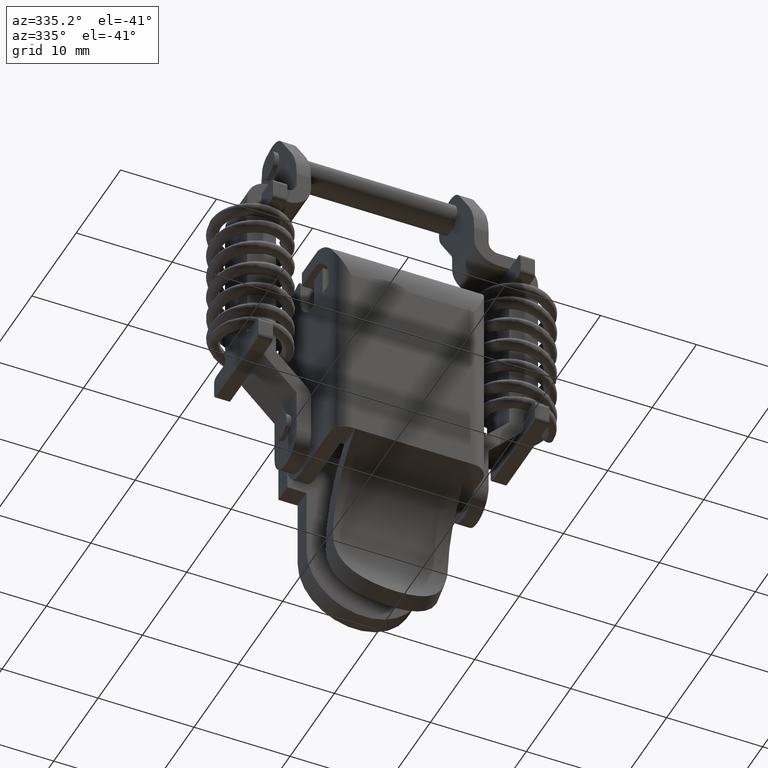
[diagram: clean part render]
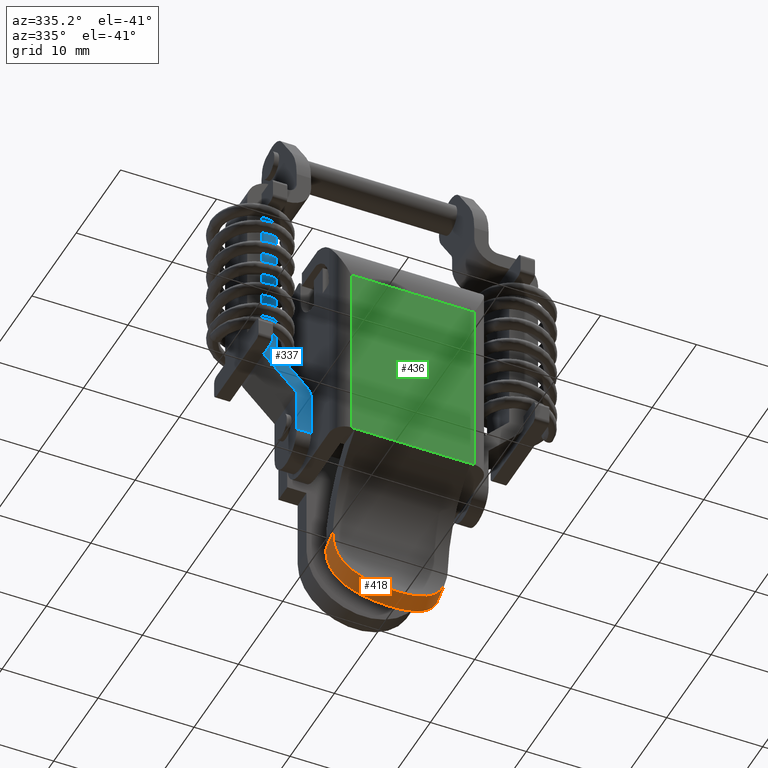
[diagram: same view with three faces highlighted in distinct colors, each labeled with its STEP entity id]
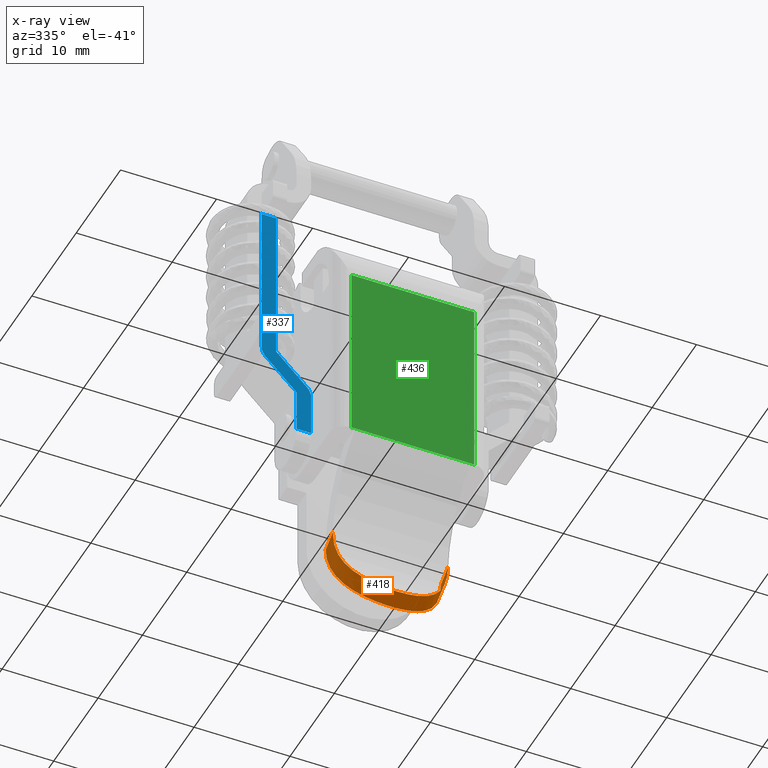
[diagram: x-ray of the same camera — body ghosted, the three highlighted faces saturated]
A machine part, auxiliary view with three faces highlighted in distinct colors.
The next image is the same camera in x-ray (body ghosted, the three faces saturated) — at least one of them is partly hidden behind the body in this view.
Their STEP definitions:

[orange] entity #418 — the highlighted cylindrical surface (partial cylindrical patch) has radius 6 mm, axis along (0, -0.867, 0.4984).
#418=ADVANCED_FACE('',(#2076),#2075,.T.);
#2075=CYLINDRICAL_SURFACE('',#3504,6.00000000000E+00);
#2076=FACE_OUTER_BOUND('',#3505,.T.);
#3501=CARTESIAN_POINT('',(0.00000000000E+00,4.88124624235E-01,-3.55992736408E+01));
#3502=DIRECTION('',(-0.00000000000E+00,-8.66966586350E-01,4.98366269075E-01));
#3503=DIRECTION('',(1.22464679915E-16,4.98366269075E-01,8.66966586350E-01));
#3504=AXIS2_PLACEMENT_3D('',#3501,#3502,#3503);
#3505=EDGE_LOOP('',(#6771,#6772,#6773,#6774));
#6771=ORIENTED_EDGE('',*,*,#7516,.F.);
#6772=ORIENTED_EDGE('',*,*,#7433,.F.);
#6773=ORIENTED_EDGE('',*,*,#7517,.F.);
#6774=ORIENTED_EDGE('',*,*,#7428,.F.);
#7428=EDGE_CURVE('',#10062,#10063,#10064,.T.);
#7433=EDGE_CURVE('',#10091,#10098,#10099,.T.);
#7516=EDGE_CURVE('',#10098,#10062,#10661,.T.);
#7517=EDGE_CURVE('',#10063,#10091,#10667,.T.);
#10062=VERTEX_POINT('',#12882);
#10063=VERTEX_POINT('',#12883);
#10064=(BOUNDED_CURVE() B_SPLINE_CURVE(3,(#12884,#12885,#12886,#12887,#12888,#12889,#12890,#12891,#12892,#12893,#12894,#12895,#12896,#12897,#12898,#12899,#12900,#12901,#12902,#12903,#12904,#12905,#12906,#12907,#12908,#12909,#12910,#12911,#12912,#12913,#12914,#12915,#12916,#12917,#12918,#12919,#12920,#12921,#12922,#12923),.UNSPECIFIED.,.F.,.F.) B_SPLINE_CURVE_WITH_KNOTS((4,2,2,2,2,2,2,2,2,2,2,2,2,2,2,2,2,2,2,4),(0.00000000000E+00,1.21913613911E-03,1.82870420867E-03,2.43827227822E-03,3.65740841734E-03,4.87654455645E-03,6.09568069556E-03,7.31481683467E-03,8.53395297378E-03,9.75308911289E-03,1.09722252520E-02,1.15817933216E-02,1.21913613911E-02,1.34104975302E-02,1.40200655998E-02,1.46296336693E-02,1.58487698085E-02,1.70679059476E-02,1.82870420867E-02,1.95061782258E-02),.UNSPECIFIED.) CURVE() GEOMETRIC_REPRESENTATION_ITEM() RATIONAL_B_SPLINE_CURVE((1.00000000000E+00,1.00000000000E+00,1.00000000000E+00,1.00000000000E+00,1.00000000000E+00,1.00000000000E+00,1.00000000000E+00,1.00000000000E+00,1.00000000000E+00,1.00000000000E+00,1.00000000000E+00,1.00000000000E+00,1.00000000000E+00,1.00000000000E+00,1.00000000000E+00,1.00000000000E+00,1.00000000000E+00,1.00000000000E+00,1.00000000000E+00,1.00000000000E+00,1.00000000000E+00,1.00000000000E+00,1.00000000000E+00,1.00000000000E+00,1.00000000000E+00,1.00000000000E+00,1.00000000000E+00,1.00000000000E+00,1.00000000000E+00,1.00000000000E+00,1.00000000000E+00,1.00000000000E+00,1.00000000000E+00,1.00000000000E+00,1.00000000000E+00,1.00000000000E+00,1.00000000000E+00,1.00000000000E+00,1.00000000000E+00,1.00000000000E+00)) REPRESENTATION_ITEM('') );
#10091=VERTEX_POINT('',#12938);
#10098=VERTEX_POINT('',#12943);
#10099=(BOUNDED_CURVE() B_SPLINE_CURVE(3,(#12944,#12945,#12946,#12947,#12948,#12949,#12950,#12951,#12952,#12953,#12954,#12955,#12956,#12957,#12958,#12959,#12960,#12961,#12962,#12963,#12964,#12965,#12966,#12967,#12968,#12969,#12970,#12971,#12972,#12973,#12974,#12975,#12976,#12977,#12978,#12979,#12980,#12981,#12982,#12983),.UNSPECIFIED.,.F.,.F.) B_SPLINE_CURVE_WITH_KNOTS((4,2,2,2,2,2,2,2,2,2,2,2,2,2,2,2,2,2,2,4),(-9.65610325047E-03,-8.44914628560E-03,-7.84566780317E-03,-7.24218932074E-03,-6.03523235587E-03,-4.82827539101E-03,-3.62131842615E-03,-2.41436146128E-03,-1.20740449642E-03,-4.47531552003E-07,1.20650943331E-03,1.80998791574E-03,2.41346639818E-03,3.62042336304E-03,4.22390184547E-03,4.82738032791E-03,6.03433729277E-03,7.24129425763E-03,8.44825122250E-03,9.65520818736E-03),.UNSPECIFIED.) CURVE() GEOMETRIC_REPRESENTATION_ITEM() RATIONAL_B_SPLINE_CURVE((1.00000000000E+00,1.00000000000E+00,1.00000000000E+00,1.00000000000E+00,1.00000000000E+00,1.00000000000E+00,1.00000000000E+00,1.00000000000E+00,1.00000000000E+00,1.00000000000E+00,1.00000000000E+00,1.00000000000E+00,1.00000000000E+00,1.00000000000E+00,1.00000000000E+00,1.00000000000E+00,1.00000000000E+00,1.00000000000E+00,1.00000000000E+00,1.00000000000E+00,1.00000000000E+00,1.00000000000E+00,1.00000000000E+00,1.00000000000E+00,1.00000000000E+00,1.00000000000E+00,1.00000000000E+00,1.00000000000E+00,1.00000000000E+00,1.00000000000E+00,1.00000000000E+00,1.00000000000E+00,1.00000000000E+00,1.00000000000E+00,1.00000000000E+00,1.00000000000E+00,1.00000000000E+00,1.00000000000E+00,1.00000000000E+00,1.00000000000E+00)) REPRESENTATION_ITEM('') );
#10661=LINE('',#13344,#13345);
#10667=LINE('',#13347,#13348);
#12882=CARTESIAN_POINT('',(-6.00000000000E+00,-2.63562471669E+00,-3.38036204645E+01));
#12883=CARTESIAN_POINT('',(6.00000000000E+00,-2.63562471669E+00,-3.38036204645E+01));
#12884=CARTESIAN_POINT('',(-6.00000000000E+00,-2.63562471669E+00,-3.38036204645E+01));
#12885=CARTESIAN_POINT('',(-6.00000000000E+00,-2.60813089258E+00,-3.42142138750E+01));
#12886=CARTESIAN_POINT('',(-5.97090903007E+00,-2.60210208170E+00,-3.46205091838E+01));
#12887=CARTESIAN_POINT('',(-5.87660509336E+00,-2.62301472533E+00,-3.52226040943E+01));
#12888=CARTESIAN_POINT('',(-5.83669091746E+00,-2.63498579734E+00,-3.54220728971E+01));
#12889=CARTESIAN_POINT('',(-5.73814316851E+00,-2.66861693265E+00,-3.58183213082E+01));
#12890=CARTESIAN_POINT('',(-5.67924508614E+00,-2.69039080929E+00,-3.60154433670E+01));
#12891=CARTESIAN_POINT('',(-5.47686118706E+00,-2.76748511198E+00,-3.65881308967E+01));
#12892=CARTESIAN_POINT('',(-5.30689927754E+00,-2.83487400160E+00,-3.69499460341E+01));
#12893=CARTESIAN_POINT('',(-4.89133712658E+00,-2.99168694766E+00,-3.76327523293E+01));
#12894=CARTESIAN_POINT('',(-4.64345124882E+00,-3.08175005735E+00,-3.79544558611E+01));
#12895=CARTESIAN_POINT('',(-4.09251288212E+00,-3.26307021561E+00,-3.85250210517E+01));
#12896=CARTESIAN_POINT('',(-3.78644412211E+00,-3.35552586229E+00,-3.87791400257E+01));
#12897=CARTESIAN_POINT('',(-3.11518137778E+00,-3.53027551886E+00,-3.92230344667E+01));
#12898=CARTESIAN_POINT('',(-2.76029995239E+00,-3.60985135974E+00,-3.94063309206E+01));
#12899=CARTESIAN_POINT('',(-2.01343391043E+00,-3.74403800483E+00,-3.97027262426E+01));
#12900=CARTESIAN_POINT('',(-1.61758208739E+00,-3.79881294256E+00,-3.98160033105E+01));
#12901=CARTESIAN_POINT('',(-8.18519976928E-01,-3.87193484574E+00,-3.99650570175E+01));
#12902=CARTESIAN_POINT('',(-4.12777232474E-01,-3.89106638958E+00,-4.00025742052E+01));
#12903=CARTESIAN_POINT('',(4.11483882626E-01,-3.89110640739E+00,-4.00026536715E+01));
#12904=CARTESIAN_POINT('',(8.16508715072E-01,-3.87201677574E+00,-3.99652129868E+01));
#12905=CARTESIAN_POINT('',(1.41372991229E+00,-3.81751779575E+00,-3.98541372490E+01));
#12906=CARTESIAN_POINT('',(1.61107379198E+00,-3.79503703000E+00,-3.98078690157E+01));
#12907=CARTESIAN_POINT('',(2.00220029929E+00,-3.74190598111E+00,-3.96959574970E+01));
#12908=CARTESIAN_POINT('',(2.19558732515E+00,-3.71125178429E+00,-3.96302770842E+01));
#12909=CARTESIAN_POINT('',(2.75697739111E+00,-3.61056514550E+00,-3.94079665855E+01));
#12910=CARTESIAN_POINT('',(3.11095073319E+00,-3.53121380913E+00,-3.92251718821E+01));
#12911=CARTESIAN_POINT('',(3.61116419284E+00,-3.40123565709E+00,-3.88953703311E+01));
#12912=CARTESIAN_POINT('',(3.77359103459E+00,-3.35581469499E+00,-3.87752914125E+01));
#12913=CARTESIAN_POINT('',(4.08099909437E+00,-3.26471192538E+00,-3.85206722670E+01));
#12914=CARTESIAN_POINT('',(4.22656626250E+00,-3.21891334202E+00,-3.83859011680E+01));
#12915=CARTESIAN_POINT('',(4.63951743552E+00,-3.08311989389E+00,-3.79590999073E+01));
#12916=CARTESIAN_POINT('',(4.88459840742E+00,-2.99418244734E+00,-3.76426578582E+01));
#12917=CARTESIAN_POINT('',(5.30504788650E+00,-2.83561903481E+00,-3.69541312109E+01));
#12918=CARTESIAN_POINT('',(5.47558940002E+00,-2.76798567681E+00,-3.65909759000E+01));
#12919=CARTESIAN_POINT('',(5.74544033235E+00,-2.66515903672E+00,-3.58288768090E+01));
#12920=CARTESIAN_POINT('',(5.84447520462E+00,-2.63018694503E+00,-3.54269010173E+01));
#12921=CARTESIAN_POINT('',(5.97089421066E+00,-2.60205846965E+00,-3.46214393341E+01));
#12922=CARTESIAN_POINT('',(6.00000000000E+00,-2.60811883615E+00,-3.42143939260E+01));
#12923=CARTESIAN_POINT('',(6.00000000000E+00,-2.63562471669E+00,-3.38036204645E+01));
#12938=CARTESIAN_POINT('',(6.00000000000E+00,-1.00946280514E+00,-3.47384018707E+01));
#12943=CARTESIAN_POINT('',(-6.00000000000E+00,-1.00946280514E+00,-3.47384018707E+01));
#12944=CARTESIAN_POINT('',(6.00000000000E+00,-1.00946280514E+00,-3.47384018707E+01));
#12945=CARTESIAN_POINT('',(6.00000000000E+00,-1.01344991931E+00,-3.51459569950E+01));
#12946=CARTESIAN_POINT('',(5.96865992076E+00,-1.03567453528E+00,-3.55474828723E+01));
#12947=CARTESIAN_POINT('',(5.86961814465E+00,-1.09423809759E+00,-3.61401901972E+01));
#12948=CARTESIAN_POINT('',(5.82789219968E+00,-1.11796864046E+00,-3.63361562413E+01));
#12949=CARTESIAN_POINT('',(5.72556343788E+00,-1.17352635480E+00,-3.67247017180E+01));
#12950=CARTESIAN_POINT('',(5.66467673433E+00,-1.20548282447E+00,-3.69176798710E+01));
#12951=CARTESIAN_POINT('',(5.45651720408E+00,-1.31016198456E+00,-3.74776664100E+01));
#12952=CARTESIAN_POINT('',(5.28297319959E+00,-1.39225295077E+00,-3.78304218724E+01));
#12953=CARTESIAN_POINT('',(4.86243481974E+00,-1.57230478673E+00,-3.84948247475E+01));
#12954=CARTESIAN_POINT('',(4.61310784370E+00,-1.67090116917E+00,-3.88073443833E+01));
#12955=CARTESIAN_POINT('',(4.06147097094E+00,-1.86431522345E+00,-3.93618303973E+01));
#12956=CARTESIAN_POINT('',(3.75702769081E+00,-1.96023697737E+00,-3.96081915010E+01));
#12957=CARTESIAN_POINT('',(3.08858335372E+00,-2.13987119496E+00,-4.00404577720E+01));
#12958=CARTESIAN_POINT('',(2.73571360508E+00,-2.22049518172E+00,-4.02191814815E+01));
#12959=CARTESIAN_POINT('',(1.99549347444E+00,-2.35543437759E+00,-4.05079121344E+01));
#12960=CARTESIAN_POINT('',(1.60372069418E+00,-2.41008172671E+00,-4.06184811378E+01));
#12961=CARTESIAN_POINT('',(8.10739310400E-01,-2.48309439951E+00,-4.07643874061E+01));
#12962=CARTESIAN_POINT('',(4.08524689834E-01,-2.50205890108E+00,-4.08010456280E+01));
#12963=CARTESIAN_POINT('',(-4.07616825543E-01,-2.50208706369E+00,-4.08011006592E+01));
#12964=CARTESIAN_POINT('',(-8.08706493222E-01,-2.48315455585E+00,-4.07644961766E+01));
#12965=CARTESIAN_POINT('',(-1.40023265090E+00,-2.42888011266E+00,-4.06560528827E+01));
#12966=CARTESIAN_POINT('',(-1.59571224067E+00,-2.40646829274E+00,-4.06108975460E+01));
#12967=CARTESIAN_POINT('',(-1.98318589362E+00,-2.35336552011E+00,-4.05017745784E+01));
#12968=CARTESIAN_POINT('',(-2.17506346561E+00,-2.32262757768E+00,-4.04376860624E+01));
#12969=CARTESIAN_POINT('',(-2.73223908532E+00,-2.22126961705E+00,-4.02208955452E+01));
#12970=CARTESIAN_POINT('',(-3.08381993066E+00,-2.14094121761E+00,-4.00428011027E+01));
#12971=CARTESIAN_POINT('',(-3.58122123000E+00,-2.00758384837E+00,-3.97222374976E+01));
#12972=CARTESIAN_POINT('',(-3.74290265960E+00,-1.96068623144E+00,-3.96056115162E+01));
#12973=CARTESIAN_POINT('',(-4.04994752286E+00,-1.86552807998E+00,-3.93578662785E+01));
#12974=CARTESIAN_POINT('',(-4.19552599303E+00,-1.81726076140E+00,-3.92267952823E+01));
#12975=CARTESIAN_POINT('',(-4.60909752481E+00,-1.67240967005E+00,-3.88119387789E+01));
#12976=CARTESIAN_POINT('',(-4.85459744712E+00,-1.57553337455E+00,-3.85059404076E+01));
#12977=CARTESIAN_POINT('',(-5.28093119082E+00,-1.39325127158E+00,-3.78348854644E+01));
#12978=CARTESIAN_POINT('',(-5.45501716022E+00,-1.31087366179E+00,-3.74807785851E+01));
#12979=CARTESIAN_POINT('',(-5.73222545949E+00,-1.17155610868E+00,-3.67368738145E+01));
#12980=CARTESIAN_POINT('',(-5.83549636537E+00,-1.11439254278E+00,-3.63431586593E+01));
#12981=CARTESIAN_POINT('',(-5.96864569128E+00,-1.03570458397E+00,-3.55487881928E+01));
#12982=CARTESIAN_POINT('',(-6.00000000000E+00,-1.01345170163E+00,-3.51461391799E+01));
#12983=CARTESIAN_POINT('',(-6.00000000000E+00,-1.00946280514E+00,-3.47384018707E+01));
#13344=CARTESIAN_POINT('',(-6.00000000000E+00,-1.00946280514E+00,-3.47384018707E+01));
#13345=VECTOR('',#13346,1.87569156315E+00);
#13346=DIRECTION('',(0.00000000000E+00,-8.66966586350E-01,4.98366269075E-01));
#13347=CARTESIAN_POINT('',(6.00000000000E+00,-2.63562471669E+00,-3.38036204645E+01));
#13348=VECTOR('',#13349,1.87569156315E+00);
#13349=DIRECTION('',(0.00000000000E+00,8.66966586350E-01,-4.98366269075E-01));

[blue] entity #337 — the highlighted planar face has unit normal (0, -1, 0).
#337=ADVANCED_FACE('',(#1257),#1256,.T.);
#1256=PLANE('',#3090);
#1257=FACE_OUTER_BOUND('',#3091,.T.);
#3087=CARTESIAN_POINT('',(-3.66500000000E+00,-2.45367295083E+00,2.61599958664E+01));
#3088=DIRECTION('',(0.00000000000E+00,-9.99999999997E-01,2.48767310927E-06));
#3089=DIRECTION('',(0.00000000000E+00,-2.48767310927E-06,-9.99999999997E-01));
#3090=AXIS2_PLACEMENT_3D('',#3087,#3088,#3089);
#3091=EDGE_LOOP('',(#6330,#6331,#6332,#6333,#6334,#6335,#6336,#6337,#6338,#6339));
#6330=ORIENTED_EDGE('',*,*,#7284,.T.);
#6331=ORIENTED_EDGE('',*,*,#7281,.T.);
#6332=ORIENTED_EDGE('',*,*,#7276,.T.);
#6333=ORIENTED_EDGE('',*,*,#7239,.F.);
#6334=ORIENTED_EDGE('',*,*,#7272,.T.);
#6335=ORIENTED_EDGE('',*,*,#7269,.T.);
#6336=ORIENTED_EDGE('',*,*,#7266,.T.);
#6337=ORIENTED_EDGE('',*,*,#7264,.T.);
#6338=ORIENTED_EDGE('',*,*,#7288,.T.);
#6339=ORIENTED_EDGE('',*,*,#7245,.F.);
#7239=EDGE_CURVE('',#8801,#8786,#8808,.T.);
#7245=EDGE_CURVE('',#8842,#8849,#8850,.T.);
#7264=EDGE_CURVE('',#8977,#8970,#8978,.T.);
#7266=EDGE_CURVE('',#8990,#8977,#8991,.T.);
#7269=EDGE_CURVE('',#9010,#8990,#9011,.T.);
#7272=EDGE_CURVE('',#8801,#9010,#9030,.T.);
#7276=EDGE_CURVE('',#9056,#8786,#9057,.T.);
#7281=EDGE_CURVE('',#9090,#9056,#9091,.T.);
#7284=EDGE_CURVE('',#8842,#9090,#9110,.T.);
#7288=EDGE_CURVE('',#8970,#8849,#9136,.T.);
#8786=VERTEX_POINT('',#12140);
#8801=VERTEX_POINT('',#12150);
#8808=LINE('',#12155,#12156);
#8842=VERTEX_POINT('',#12174);
#8849=VERTEX_POINT('',#12178);
#8850=LINE('',#12179,#12180);
#8970=VERTEX_POINT('',#12251);
#8977=VERTEX_POINT('',#12255);
#8978=LINE('',#12256,#12257);
#8990=VERTEX_POINT('',#12262);
#8991=LINE('',#12263,#12264);
#9010=VERTEX_POINT('',#12273);
#9011=CIRCLE('',#12277,1.50000000000E+00);
#9030=LINE('',#12286,#12287);
#9056=VERTEX_POINT('',#12302);
#9057=LINE('',#12303,#12304);
#9090=VERTEX_POINT('',#12323);
#9091=LINE('',#12324,#12325);
#9110=CIRCLE('',#12337,1.50000000000E+00);
#9136=LINE('',#12352,#12353);
#12140=CARTESIAN_POINT('',(5.00000000000E-01,-2.45374300369E+00,-1.99999759099E+00));
#12150=CARTESIAN_POINT('',(2.00000000000E+00,-2.45374300369E+00,-1.99999759099E+00));
#12155=CARTESIAN_POINT('',(2.00000000000E+00,-2.45374300369E+00,-1.99999759099E+00));
#12156=VECTOR('',#12157,1.50000000000E+00);
#12157=DIRECTION('',(-1.00000000000E+00,0.00000000000E+00,0.00000000000E+00));
#12174=CARTESIAN_POINT('',(-3.15000000000E+00,-2.45372081671E+00,6.91876891475E+00));
#12178=CARTESIAN_POINT('',(-3.15000000000E+00,-2.45367931927E+00,2.35999964612E+01));
#12179=CARTESIAN_POINT('',(-3.15000000000E+00,-2.45372081671E+00,6.91876891475E+00));
#12180=VECTOR('',#12181,1.66812275465E+01);
#12181=DIRECTION('',(0.00000000000E+00,2.48767310927E-06,9.99999999997E-01));
#12251=CARTESIAN_POINT('',(-1.65000000000E+00,-2.45367931927E+00,2.35999964612E+01));
#12255=CARTESIAN_POINT('',(-1.65000000000E+00,-2.45372081262E+00,6.92041220611E+00));
#12256=CARTESIAN_POINT('',(-1.65000000000E+00,-2.45372081262E+00,6.92041220611E+00));
#12257=VECTOR('',#12258,1.66795842552E+01);
#12258=DIRECTION('',(0.00000000000E+00,2.48767310927E-06,9.99999999997E-01));
#12262=CARTESIAN_POINT('',(1.57716753486E+00,-2.45372909667E+00,3.59037351875E+00));
#12263=CARTESIAN_POINT('',(1.57716753486E+00,-2.45372909667E+00,3.59037351875E+00));
#12264=VECTOR('',#12265,4.63721553925E+00);
#12265=DIRECTION('',(-6.95927870410E-01,1.78642714044E-06,7.18111689909E-01));
#12273=CARTESIAN_POINT('',(2.00000000000E+00,-2.45373169353E+00,2.54648171313E+00));
#12274=CARTESIAN_POINT('',(5.00000000000E-01,-2.45373169353E+00,2.54648171313E+00));
#12275=DIRECTION('',(0.00000000000E+00,-9.99999999997E-01,2.48767310927E-06));
#12276=DIRECTION('',(-0.00000000000E+00,2.48767310927E-06,9.99999999997E-01));
#12277=AXIS2_PLACEMENT_3D('',#12274,#12275,#12276);
#12286=CARTESIAN_POINT('',(2.00000000000E+00,-2.45374300369E+00,-1.99999759099E+00));
#12287=VECTOR('',#12288,4.54647930414E+00);
#12288=DIRECTION('',(0.00000000000E+00,2.48767310930E-06,9.99999999997E-01));
#12302=CARTESIAN_POINT('',(5.00000000000E-01,-2.45373169353E+00,2.54648171313E+00));
#12303=CARTESIAN_POINT('',(5.00000000000E-01,-2.45373169353E+00,2.54648171313E+00));
#12304=VECTOR('',#12305,4.54647930414E+00);
#12305=DIRECTION('',(1.61412242350E-14,-2.48767310920E-06,-9.99999999997E-01));
#12323=CARTESIAN_POINT('',(-2.76710134672E+00,-2.45372330698E+00,5.91772716680E+00));
#12324=CARTESIAN_POINT('',(-2.76710134672E+00,-2.45372330698E+00,5.91772716680E+00));
#12325=VECTOR('',#12326,4.69459765248E+00);
#12326=DIRECTION('',(6.95927870410E-01,-1.78642714043E-06,-7.18111689909E-01));
#12334=CARTESIAN_POINT('',(-1.65000000000E+00,-2.45372081671E+00,6.91876891475E+00));
#12335=DIRECTION('',(0.00000000000E+00,-9.99999999997E-01,2.48767310927E-06));
#12336=DIRECTION('',(-0.00000000000E+00,2.48767310927E-06,9.99999999997E-01));
#12337=AXIS2_PLACEMENT_3D('',#12334,#12335,#12336);
#12352=CARTESIAN_POINT('',(-1.65000000000E+00,-2.45367931927E+00,2.35999964612E+01));
#12353=VECTOR('',#12354,1.50000000000E+00);
#12354=DIRECTION('',(-1.00000000000E+00,0.00000000000E+00,0.00000000000E+00));

[green] entity #436 — the highlighted planar face has unit normal (0, -1, 0).
#436=ADVANCED_FACE('',(#2257),#2256,.T.);
#2256=PLANE('',#3595);
#2257=FACE_OUTER_BOUND('',#3596,.T.);
#3592=CARTESIAN_POINT('',(-7.68000000000E+00,-7.69108641419E+00,-3.79000000000E+00));
#3593=DIRECTION('',(0.00000000000E+00,-1.00000000000E+00,0.00000000000E+00));
#3594=DIRECTION('',(0.00000000000E+00,0.00000000000E+00,-1.00000000000E+00));
#3595=AXIS2_PLACEMENT_3D('',#3592,#3593,#3594);
#3596=EDGE_LOOP('',(#6862,#6863,#6864,#6865,#6866,#6867));
#6862=ORIENTED_EDGE('',*,*,#7537,.F.);
#6863=ORIENTED_EDGE('',*,*,#7519,.T.);
#6864=ORIENTED_EDGE('',*,*,#7440,.T.);
#6865=ORIENTED_EDGE('',*,*,#7550,.T.);
#6866=ORIENTED_EDGE('',*,*,#7483,.T.);
#6867=ORIENTED_EDGE('',*,*,#7430,.F.);
#7430=EDGE_CURVE('',#10070,#10077,#10078,.T.);
#7440=EDGE_CURVE('',#10146,#10147,#10148,.T.);
#7483=EDGE_CURVE('',#10441,#10077,#10442,.T.);
#7519=EDGE_CURVE('',#10679,#10146,#10680,.T.);
#7537=EDGE_CURVE('',#10679,#10070,#10796,.T.);
#7550=EDGE_CURVE('',#10147,#10441,#10880,.T.);
#10070=VERTEX_POINT('',#12924);
#10077=VERTEX_POINT('',#12929);
#10078=LINE('',#12930,#12931);
#10146=VERTEX_POINT('',#13010);
#10147=VERTEX_POINT('',#13011);
#10148=LINE('',#13012,#13013);
#10441=VERTEX_POINT('',#13212);
#10442=LINE('',#13213,#13214);
#10679=VERTEX_POINT('',#13353);
#10680=LINE('',#13354,#13355);
#10796=LINE('',#13421,#13422);
#10880=LINE('',#13470,#13471);
#12924=CARTESIAN_POINT('',(6.00000000000E+00,-7.69108641419E+00,-2.48000000000E+01));
#12929=CARTESIAN_POINT('',(-6.00000000000E+00,-7.69108641419E+00,-2.48000000000E+01));
#12930=CARTESIAN_POINT('',(6.00000000000E+00,-7.69108641419E+00,-2.48000000000E+01));
#12931=VECTOR('',#12932,1.20000000000E+01);
#12932=DIRECTION('',(-1.00000000000E+00,0.00000000000E+00,0.00000000000E+00));
#13010=CARTESIAN_POINT('',(6.40000000000E+00,-7.69108641419E+00,-5.70000000000E+00));
#13011=CARTESIAN_POINT('',(-6.40000000000E+00,-7.69108641419E+00,-5.70000000000E+00));
#13012=CARTESIAN_POINT('',(6.40000000000E+00,-7.69108641419E+00,-5.70000000000E+00));
#13013=VECTOR('',#13014,1.28000000000E+01);
#13014=DIRECTION('',(-1.00000000000E+00,0.00000000000E+00,0.00000000000E+00));
#13212=CARTESIAN_POINT('',(-6.40000000000E+00,-7.69108641419E+00,-2.48000000000E+01));
#13213=CARTESIAN_POINT('',(-6.40000000000E+00,-7.69108641419E+00,-2.48000000000E+01));
#13214=VECTOR('',#13215,4.00000000000E-01);
#13215=DIRECTION('',(1.00000000000E+00,0.00000000000E+00,0.00000000000E+00));
#13353=CARTESIAN_POINT('',(6.40000000000E+00,-7.69108641419E+00,-2.48000000000E+01));
#13354=CARTESIAN_POINT('',(6.40000000000E+00,-7.69108641419E+00,-2.48000000000E+01));
#13355=VECTOR('',#13356,1.91000000000E+01);
#13356=DIRECTION('',(0.00000000000E+00,0.00000000000E+00,1.00000000000E+00));
#13421=CARTESIAN_POINT('',(6.40000000000E+00,-7.69108641419E+00,-2.48000000000E+01));
#13422=VECTOR('',#13423,4.00000000000E-01);
#13423=DIRECTION('',(-1.00000000000E+00,0.00000000000E+00,0.00000000000E+00));
#13470=CARTESIAN_POINT('',(-6.40000000000E+00,-7.69108641419E+00,-5.70000000000E+00));
#13471=VECTOR('',#13472,1.91000000000E+01);
#13472=DIRECTION('',(0.00000000000E+00,0.00000000000E+00,-1.00000000000E+00));